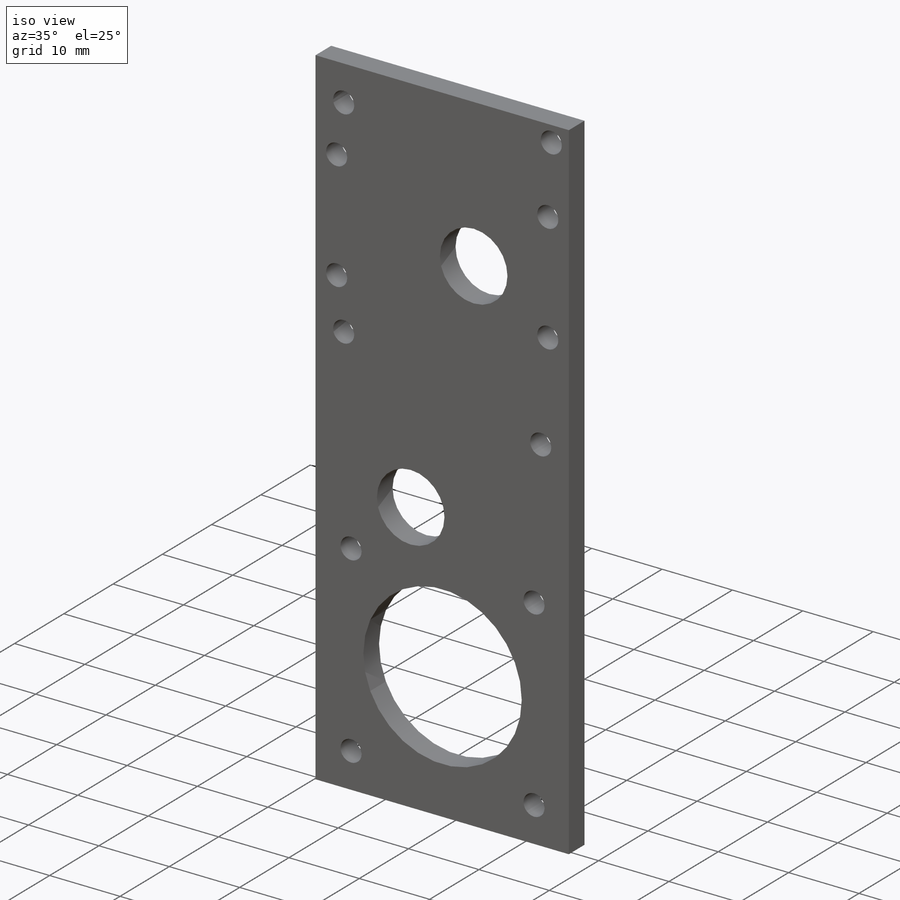
[diagram: iso view]
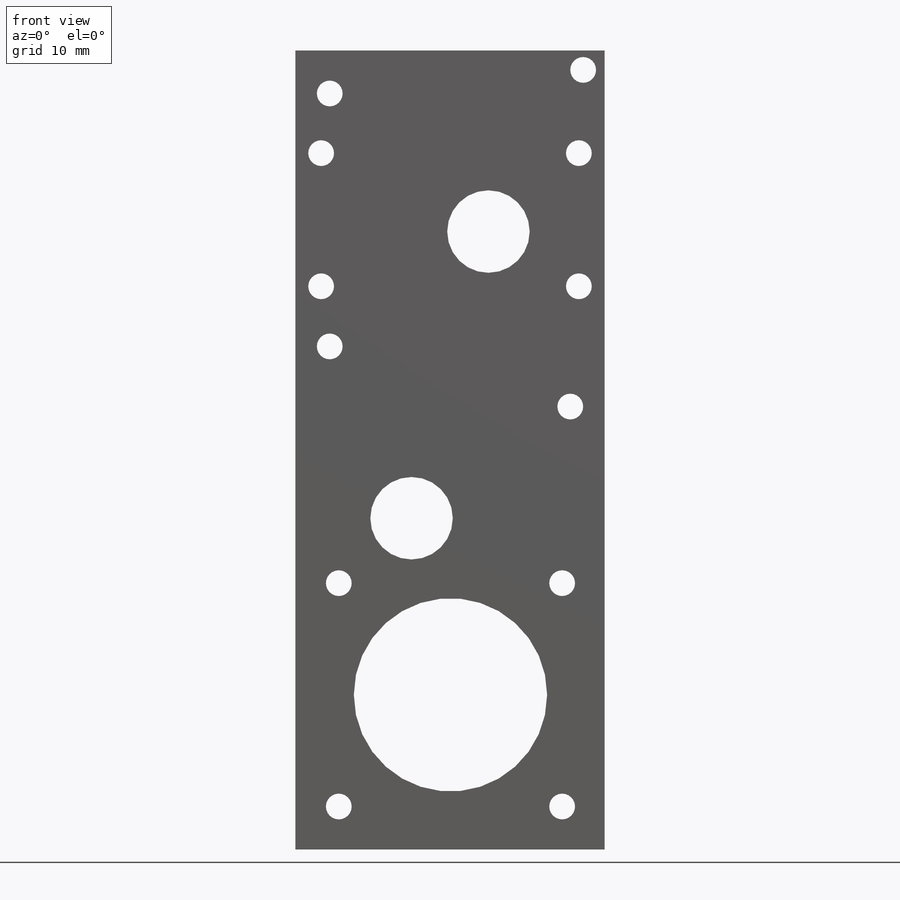
[diagram: front view]
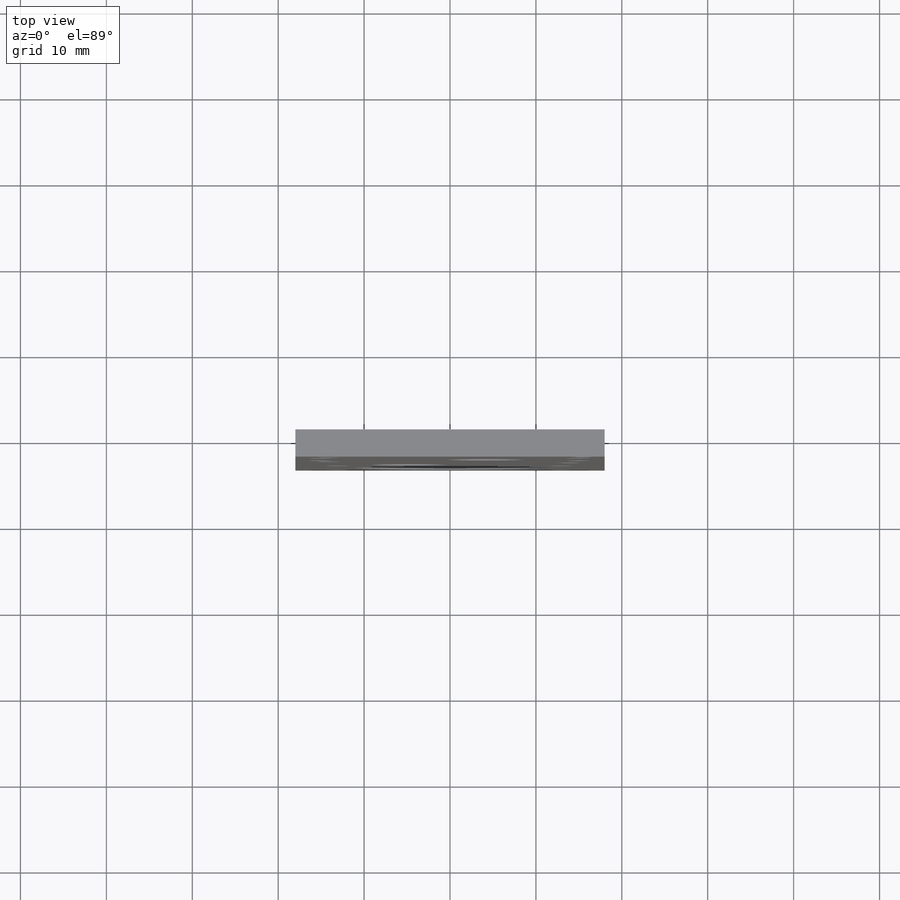
[diagram: top view]
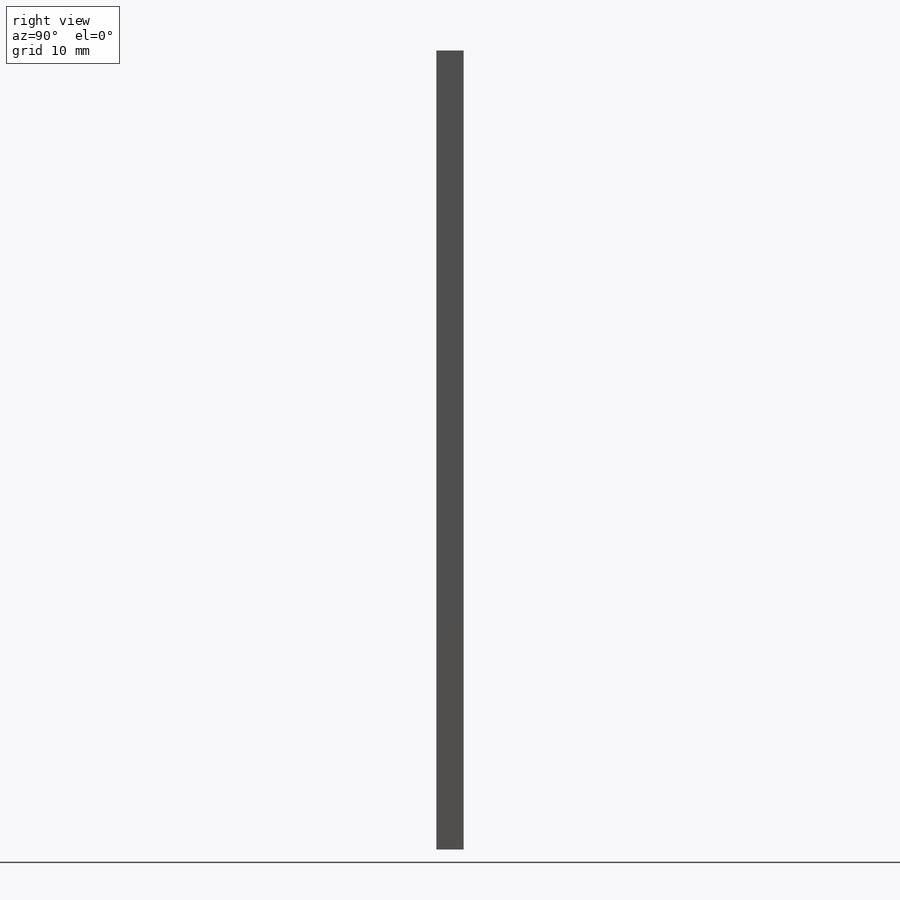
[diagram: right view]
SOLIDWORKS PART (.sldprt)
format: sldprt  version: not decoded by parser v0  size: 195,584 bytes
history: native  units: mm
features: sketch x3, material x1, extrude x1, cut_extrude x1 (+16 scaffold rows collapsed)
feature tree (22):
  scaffold x16  (default folders/planes/origin — collapsed)
  material  "Material <not specified>"
  sketch  "Sketch1"  dims[c1.D3=~2.19837mm c1.D5=3.75mm c1.D1=4.475mm c1.D2=5.375mm c2.D1=4.475mm c2.D3=5.375mm c2.D4=4.475mm]
  sketch  "Sketch2"  dims[c1.D1=~3.205398mm c1.D2=~0.751588mm c1.D4=~1.139074mm c2.D1=5.0mm c2.D2=4.0mm c2.D3=5.0mm c2.D4=2.5mm]
  extrude  "Boss-Extrude1"  Depth=3.175mm
  sketch  "Sketch3"  dims[D1=32.0mm]
  cut_extrude  "Cut-Extrude1"  Depth=16mm
decode coverage: 5 of 5 modeling features carry decoded parameters
note: ~ marks probable driven/reference dimensions
note: suppression state not decoded; provenance and decode notes live in map.json
